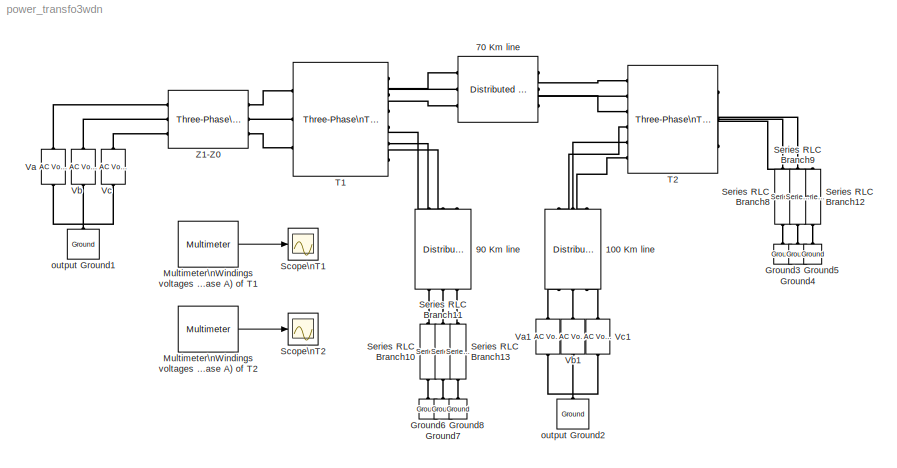
MODEL power_transfo3wdn
KIND model
BLOCK [Reference] 100 Km line  REF=powerlib/Elements/Distributed Parameters Line
  AttributesFormatString = \\n
  Capacitance = [12.02e-9   7.47e-9]
  Frequency = 60
  Inductance = [0.0009536  .0034]
  Length = 100
  Measurements = None
  Phases = 3
  Ports = [0, 0, 0, 0, 0, 3, 3]
  Resistance = [0.045 0.383]
  ShowPortLabels = on
  SourceBlock = powerlib/Elements/Distributed Parameters Line
  SourceType = Distributed Parameters Line
  x1 = [0 0.7635 6.552e+04 -3.356e+05;0.0004716 0.2984 1.238e+05 -3.187e+05;0.0009433 -0.1761 1.782e+05 -2.918e+05;0.001415 -0.645 2.27e+05 -2.556e+05;0.001887 -1.094 2.687e+05 -2.114e+05;0.002358 -1.508 3.018e+05 -1.606e+05]  <repeated x3 — deduplicated; at blocks: 100 Km line, 70 Km line, 90 Km line>
  x2 = [0 1.583 2.165e+04 -3.402e+05;0.0004716 0.789 8.149e+04 -3.31e+05;0.0009433 -0.02989 1.388e+05 -3.114e+05;0.001415 -0.8479 1.916e+05 -2.82e+05;0.001887 -1.639 2.385e+05 -2.436e+05;0.002358 -2.379 2.778e+05 -1.976e+05]  <repeated x3 — deduplicated; at blocks: 100 Km line, 70 Km line, 90 Km line>
  x3 = [0 0.02395 -235.2 649.9;0.0004716 0.02363 -346.5 598;0.0009433 0.02255 -446.8 527.3;0.001415 0.02077 -533 440;0.001887 0.01833 -602.4 338.8;0.002358 0.01531 -652.8 226.9]
  x4 = [0 -0.01995 443.3 -3029;0.0004716 -0.02141 972 -2902;0.0009433 -0.02221 1470 -2685;0.001415 -0.0223 1922 -2382;0.001887 -0.02169 2313 -2005;0.002358 -0.02039 2631 -1564]
  x5 = 0.002358
BLOCK [Reference] 70 Km line  REF=powerlib/Elements/Distributed Parameters Line
  AttributesFormatString = \\n
  Capacitance = [12.02e-9   7.47e-9]
  Frequency = 60
  Inductance = [0.0009536  .0034]
  Length = 70
  Measurements = None
  Phases = 3
  Ports = [0, 0, 0, 0, 0, 3, 3]
  Resistance = [0.045 0.383]
  ShowPortLabels = on
  SourceBlock = powerlib/Elements/Distributed Parameters Line
  SourceType = Distributed Parameters Line
  x3 = [0 0.02395 -235.2 649.9;0.0004716 0.02363 -346.5 598;0.0009433 0.02255 -446.8 527.3;0.001415 0.02077 -533 440;0.001887 0.01833 -602.4 338.8;0.002358 0.01531 -652.8 226.9]
  x4 = [0 -0.01995 443.3 -3029;0.0004716 -0.02141 972 -2902;0.0009433 -0.02221 1470 -2685;0.001415 -0.0223 1922 -2382;0.001887 -0.02169 2313 -2005;0.002358 -0.02039 2631 -1564]
  x5 = 0.002358
BLOCK [Reference] 90 Km line  REF=powerlib/Elements/Distributed Parameters Line
  AttributesFormatString = \\n
  Capacitance = [12.02e-9   7.47e-9]
  Frequency = 60
  Inductance = [0.0009536  .0034]
  Length = 90
  Measurements = None
  Phases = 3
  Ports = [0, 0, 0, 0, 0, 3, 3]
  Resistance = [0.045 0.383]
  ShowPortLabels = on
  SourceBlock = powerlib/Elements/Distributed Parameters Line
  SourceType = Distributed Parameters Line
  x3 = [0 0.02395 -235.2 649.9;0.0004716 0.02363 -346.5 598;0.0009433 0.02255 -446.8 527.3;0.001415 0.02077 -533 440;0.001887 0.01833 -602.4 338.8;0.002358 0.01531 -652.8 226.9]
  x4 = [0 -0.01995 443.3 -3029;0.0004716 -0.02141 972 -2902;0.0009433 -0.02221 1470 -2685;0.001415 -0.0223 1922 -2382;0.001887 -0.02169 2313 -2005;0.002358 -0.02039 2631 -1564]
  x5 = 0.002358
BLOCK [Reference] Ground3  REF=powerlib/Elements/Ground
  AttributesFormatString = \\n
  LConnTagsString = a
  LeftPortType = p1
  PhysicalDomain = powersysdomain
  Ports = [0, 0, 0, 0, 0, 1]
  RightPortType = p1
  SourceBlock = powerlib/Elements/Ground
  SourceType = Ground
  SubClassName = unknown
BLOCK [Reference] Ground4  REF=powerlib/Elements/Ground
  AttributesFormatString = \\n
  LConnTagsString = a
  LeftPortType = p1
  PhysicalDomain = powersysdomain
  Ports = [0, 0, 0, 0, 0, 1]
  RightPortType = p1
  SourceBlock = powerlib/Elements/Ground
  SourceType = Ground
  SubClassName = unknown
BLOCK [Reference] Ground5  REF=powerlib/Elements/Ground
  AttributesFormatString = \\n
  LConnTagsString = a
  LeftPortType = p1
  PhysicalDomain = powersysdomain
  Ports = [0, 0, 0, 0, 0, 1]
  RightPortType = p1
  SourceBlock = powerlib/Elements/Ground
  SourceType = Ground
  SubClassName = unknown
BLOCK [Reference] Ground6  REF=powerlib/Elements/Ground
  AttributesFormatString = \\n
  LConnTagsString = a
  LeftPortType = p1
  PhysicalDomain = powersysdomain
  Ports = [0, 0, 0, 0, 0, 1]
  RightPortType = p1
  SourceBlock = powerlib/Elements/Ground
  SourceType = Ground
  SubClassName = unknown
BLOCK [Reference] Ground7  REF=powerlib/Elements/Ground
  AttributesFormatString = \\n
  LConnTagsString = a
  LeftPortType = p1
  PhysicalDomain = powersysdomain
  Ports = [0, 0, 0, 0, 0, 1]
  RightPortType = p1
  SourceBlock = powerlib/Elements/Ground
  SourceType = Ground
  SubClassName = unknown
BLOCK [Reference] Ground8  REF=powerlib/Elements/Ground
  AttributesFormatString = \\n
  LConnTagsString = a
  LeftPortType = p1
  PhysicalDomain = powersysdomain
  Ports = [0, 0, 0, 0, 0, 1]
  RightPortType = p1
  SourceBlock = powerlib/Elements/Ground
  SourceType = Ground
  SubClassName = unknown
BLOCK [Reference] Multimeter\nWindings voltages (phase A) of T1  REF=powerlib/Measurements/Multimeter
  AttributesFormatString = \\n
  AxesSetting = [0,0.1,-100,100]
  Display = 0
  Gain = [1 1 1]
  L = 18
  OutputType = Magnitude
  PSBOutputType = 1
  PSBequivalent = 0
  PhasorSimulation = off
  Ports = [0, 1]
  SavedBlockNames = {}
  ShowPortLabels = on
  SourceBlock = powerlib/Measurements/Multimeter
  SourceType = MultimeterPSB
  Tag = PoWeRsYsTeMmEaSuReMeNt
  sel = [1 4 7]
  yselected = {'Uag_w1: T1','Uag_w2: T1','Uab_w3: T1'};
BLOCK [Reference] Multimeter\nWindings voltages (phase A) of T2  REF=powerlib/Measurements/Multimeter
  AttributesFormatString = \\n
  AxesSetting = [0,0.1,-100,100]
  Display = 0
  Gain = [1 1 1]
  L = 18
  OutputType = Magnitude
  PSBOutputType = 1
  PSBequivalent = 0
  PhasorSimulation = off
  Ports = [0, 1]
  SavedBlockNames = {}
  ShowPortLabels = on
  SourceBlock = powerlib/Measurements/Multimeter
  SourceType = MultimeterPSB
  Tag = PoWeRsYsTeMmEaSuReMeNt
  sel = [10 13 16]
  yselected = {'Uan_w1: T2','Uan_w2: T2','Uab_w3: T2'};
BLOCK [Scope] Scope\nT1
  DataFormat = StructureWithTime
  NumInputPorts = 1
  Ports = [1]
  TimeRange = 0.1
  YMax = 400000
  YMin = -400000
BLOCK [Scope] Scope\nT2
  DataFormat = StructureWithTime
  NumInputPorts = 1
  Ports = [1]
  TimeRange = 0.1
  YMax = 1e+006
  YMin = -1e+006
BLOCK [Reference] Series RLC Branch10  REF=powerlib/Elements/Series RLC Branch
  AttributesFormatString = \\n
  Capacitance = inf
  Inductance = 6.03
  LConnTagsString = __new0
  LeftPortType = p1
  Measurements = None
  PhysicalDomain = powersysdomain
  Ports = [0, 0, 0, 0, 0, 1, 1]
  RConnTagsString = __new0
  Resistance = 5.7
  RightPortType = p1
  SourceBlock = powerlib/Elements/Series RLC Branch
  SourceType = Series RLC Branch
  SubClassName = unknown
BLOCK [Reference] Series RLC Branch11  REF=powerlib/Elements/Series RLC Branch
  AttributesFormatString = \\n
  Capacitance = inf
  Inductance = 6.03
  LConnTagsString = __new0
  LeftPortType = p1
  Measurements = None
  PhysicalDomain = powersysdomain
  Ports = [0, 0, 0, 0, 0, 1, 1]
  RConnTagsString = __new0
  Resistance = 5.7
  RightPortType = p1
  SourceBlock = powerlib/Elements/Series RLC Branch
  SourceType = Series RLC Branch
  SubClassName = unknown
BLOCK [Reference] Series RLC Branch12  REF=powerlib/Elements/Series RLC Branch
  AttributesFormatString = \\n
  Capacitance = inf
  Inductance = 6.03
  LConnTagsString = __new0
  LeftPortType = p1
  Measurements = None
  PhysicalDomain = powersysdomain
  Ports = [0, 0, 0, 0, 0, 1, 1]
  RConnTagsString = __new0
  Resistance = 5.7
  RightPortType = p1
  SourceBlock = powerlib/Elements/Series RLC Branch
  SourceType = Series RLC Branch
  SubClassName = unknown
BLOCK [Reference] Series RLC Branch13  REF=powerlib/Elements/Series RLC Branch
  AttributesFormatString = \\n
  Capacitance = inf
  Inductance = 6.03
  LConnTagsString = __new0
  LeftPortType = p1
  Measurements = None
  PhysicalDomain = powersysdomain
  Ports = [0, 0, 0, 0, 0, 1, 1]
  RConnTagsString = __new0
  Resistance = 5.7
  RightPortType = p1
  SourceBlock = powerlib/Elements/Series RLC Branch
  SourceType = Series RLC Branch
  SubClassName = unknown
BLOCK [Reference] Series RLC Branch8  REF=powerlib/Elements/Series RLC Branch
  AttributesFormatString = \\n
  Capacitance = inf
  Inductance = 6.03
  LConnTagsString = __new0
  LeftPortType = p1
  Measurements = None
  PhysicalDomain = powersysdomain
  Ports = [0, 0, 0, 0, 0, 1, 1]
  RConnTagsString = __new0
  Resistance = 5.7
  RightPortType = p1
  SourceBlock = powerlib/Elements/Series RLC Branch
  SourceType = Series RLC Branch
  SubClassName = unknown
BLOCK [Reference] Series RLC Branch9  REF=powerlib/Elements/Series RLC Branch
  AttributesFormatString = \\n
  Capacitance = inf
  Inductance = 6.03
  LConnTagsString = __new0
  LeftPortType = p1
  Measurements = None
  PhysicalDomain = powersysdomain
  Ports = [0, 0, 0, 0, 0, 1, 1]
  RConnTagsString = __new0
  Resistance = 5.7
  RightPortType = p1
  SourceBlock = powerlib/Elements/Series RLC Branch
  SourceType = Series RLC Branch
  SubClassName = unknown
BLOCK [Reference] T1  REF=powerlib/Elements/Three-Phase\nTransformer\n(Three Windings)
  AttributesFormatString = \\n
  DataFile = 'hysteresis'
  Hysteresis = off
  InitialFluxes = [0.8 -0.8 0.7]
  Lm = 500
  Measurements = Winding voltages
  NominalPower = [ 250e6 , 60 ]
  Ports = [0, 0, 0, 0, 0, 3, 6]
  Rm = 500
  Saturation = [ 0,0  ;  0.005,1.2  ;  1.0,1.4]
  SetInitialFlux = off
  SetSaturation = off
  ShowPortLabels = on
  SourceBlock = powerlib/Elements/Three-Phase\nTransformer\n(Three Windings)
  SourceType = Three-Phase Transformer (Three Windings)
  TransfoNumber = 0
  Winding1 = [ 735e3 , 0.002 , 0.08 ]
  Winding1Connection = Yg
  Winding2 = [ 315e3 , 0.002 , 0.08 ]
  Winding2Connection = Yg
  Winding3 = [ 315e3 , 0.002 , 0.08 ]
  Winding3Connection = Delta (D1)
BLOCK [Reference] T2  REF=powerlib/Elements/Three-Phase\nTransformer\n(Three Windings)
  AttributesFormatString = \\n
  DataFile = 'hysteresis'
  Hysteresis = off
  InitialFluxes = [0.8 -0.8 0.7]
  Lm = 500
  Measurements = Winding voltages
  NominalPower = [ 250e6 , 60 ]
  Ports = [0, 0, 0, 0, 0, 3, 6]
  Rm = 500
  Saturation = [ 0,0  ;  0.005,1.2  ;  1.0,1.4]
  SetInitialFlux = off
  SetSaturation = off
  ShowPortLabels = on
  SourceBlock = powerlib/Elements/Three-Phase\nTransformer\n(Three Windings)
  SourceType = Three-Phase Transformer (Three Windings)
  TransfoNumber = 0
  Winding1 = [ 735e3 , 0.002 , 0.08 ]
  Winding1Connection = Y
  Winding2 = [ 315e3 , 0.002 , 0.08 ]
  Winding2Connection = Y
  Winding3 = [ 315e3 , 0.002 , 0.08 ]
  Winding3Connection = Delta (D1)
BLOCK [Reference] Va  REF=powerlib/Electrical\nSources/AC Voltage Source
  Amplitude = 315e3
  AttributesFormatString = \\n
  Description = source block
  Frequency = 60
  Measurements = None
  Phase = -65.4
  Ports = [0, 0, 0, 0, 0, 1, 1]
  SampleTime = 0
  ShowPortLabels = on
  SourceBlock = powerlib/Electrical\nSources/AC Voltage Source
  SourceType = AC Voltage Source
BLOCK [Reference] Va1  REF=powerlib/Electrical\nSources/AC Voltage Source
  Amplitude = 479690
  AttributesFormatString = \\n
  Description = source block
  Frequency = 60
  Measurements = None
  Phase = 0
  Ports = [0, 0, 0, 0, 0, 1, 1]
  SampleTime = 0
  ShowPortLabels = on
  SourceBlock = powerlib/Electrical\nSources/AC Voltage Source
  SourceType = AC Voltage Source
BLOCK [Reference] Vb  REF=powerlib/Electrical\nSources/AC Voltage Source
  Amplitude = 315e3
  AttributesFormatString = \\n
  Description = source block
  Frequency = 60
  Measurements = None
  Phase = -65.4-120
  Ports = [0, 0, 0, 0, 0, 1, 1]
  SampleTime = 0
  ShowPortLabels = on
  SourceBlock = powerlib/Electrical\nSources/AC Voltage Source
  SourceType = AC Voltage Source
BLOCK [Reference] Vb1  REF=powerlib/Electrical\nSources/AC Voltage Source
  Amplitude = 470000
  AttributesFormatString = \\n
  Description = source block
  Frequency = 60
  Measurements = None
  Phase = -120
  Ports = [0, 0, 0, 0, 0, 1, 1]
  SampleTime = 0
  ShowPortLabels = on
  SourceBlock = powerlib/Electrical\nSources/AC Voltage Source
  SourceType = AC Voltage Source
BLOCK [Reference] Vc  REF=powerlib/Electrical\nSources/AC Voltage Source
  Amplitude = 479690
  AttributesFormatString = \\n
  Description = source block
  Frequency = 60
  Measurements = None
  Phase = -65.4+120
  Ports = [0, 0, 0, 0, 0, 1, 1]
  SampleTime = 0
  ShowPortLabels = on
  SourceBlock = powerlib/Electrical\nSources/AC Voltage Source
  SourceType = AC Voltage Source
BLOCK [Reference] Vc1  REF=powerlib/Electrical\nSources/AC Voltage Source
  Amplitude = 470000
  AttributesFormatString = \\n
  Description = source block
  Frequency = 60
  Measurements = None
  Phase = +120
  Ports = [0, 0, 0, 0, 0, 1, 1]
  SampleTime = 0
  ShowPortLabels = on
  SourceBlock = powerlib/Electrical\nSources/AC Voltage Source
  SourceType = AC Voltage Source
BLOCK [Reference] Z1-Z0  REF=powerlib/Elements/Three-Phase\nMutual Inductance\nZ1-Z0
  AttributesFormatString = \\n
  LConnTagsString = a|b|c
  LeftPortType = p1
  PhysicalDomain = powersysdomain
  Ports = [0, 0, 0, 0, 0, 3, 3]
  PositiveSequence = [ 2  50e-3]
  RConnTagsString = A|B|C
  RightPortType = p1
  SourceBlock = powerlib/Elements/Three-Phase\nMutual Inductance\nZ1-Z0
  SourceType = Three-Phase Mutual Inductance Z1-Z0
  SubClassName = unknown
  ZeroSequence = [4  100e-3]
BLOCK [Reference] output Ground1  REF=powerlib/Elements/Ground
  AttributesFormatString = \\n
  LConnTagsString = a
  LeftPortType = p1
  PhysicalDomain = powersysdomain
  Ports = [0, 0, 0, 0, 0, 1]
  RightPortType = p1
  SourceBlock = powerlib/Elements/Ground
  SourceType = Ground
  SubClassName = unknown
BLOCK [Reference] output Ground2  REF=powerlib/Elements/Ground
  AttributesFormatString = \\n
  LConnTagsString = a
  LeftPortType = p1
  PhysicalDomain = powersysdomain
  Ports = [0, 0, 0, 0, 0, 1]
  RightPortType = p1
  SourceBlock = powerlib/Elements/Ground
  SourceType = Ground
  SubClassName = unknown
LINE Multimeter\nWindings voltages (phase A) of T1:1 -> Scope\nT1:1
LINE Multimeter\nWindings voltages (phase A) of T2:1 -> Scope\nT2:1
PLINE 100 Km line:LConn1 -- Va1:RConn1
PLINE 100 Km line:LConn2 -- Vb1:RConn1
PLINE 100 Km line:LConn3 -- Vc1:RConn1
PLINE 100 Km line:RConn1 -- T2:RConn4
PLINE 100 Km line:RConn2 -- T2:RConn5
PLINE 100 Km line:RConn3 -- T2:RConn6
PLINE 70 Km line:LConn1 -- T1:RConn1
PLINE 70 Km line:LConn2 -- T1:RConn2
PLINE 70 Km line:LConn3 -- T1:RConn3
PLINE 70 Km line:RConn1 -- T2:RConn1
PLINE 70 Km line:RConn2 -- T2:RConn2
PLINE 70 Km line:RConn3 -- T2:RConn3
PLINE 90 Km line:LConn1 -- T1:RConn4
PLINE 90 Km line:LConn2 -- T1:RConn5
PLINE 90 Km line:LConn3 -- T1:RConn6
PLINE 90 Km line:RConn1 -- Series RLC Branch10:LConn1
PLINE 90 Km line:RConn2 -- Series RLC Branch11:LConn1
PLINE 90 Km line:RConn3 -- Series RLC Branch13:LConn1
PLINE Ground3:LConn1 -- Series RLC Branch8:RConn1
PLINE Ground4:LConn1 -- Series RLC Branch9:RConn1
PLINE Ground5:LConn1 -- Series RLC Branch12:RConn1
PLINE Ground6:LConn1 -- Series RLC Branch10:RConn1
PLINE Ground7:LConn1 -- Series RLC Branch11:RConn1
PLINE Ground8:LConn1 -- Series RLC Branch13:RConn1
PLINE Series RLC Branch12:LConn1 -- T2:LConn1
PLINE Series RLC Branch8:LConn1 -- T2:LConn3
PLINE Series RLC Branch9:LConn1 -- T2:LConn2
PLINE T1:LConn1 -- Z1-Z0:RConn1
PLINE T1:LConn2 -- Z1-Z0:RConn2
PLINE T1:LConn3 -- Z1-Z0:RConn3
PNET net1: Va1:LConn1 -- Vb1:LConn1 -- Vc1:LConn1 -- output Ground2:LConn1
PNET net2: Va:LConn1 -- Vb:LConn1 -- Vc:LConn1 -- output Ground1:LConn1
PLINE Va:RConn1 -- Z1-Z0:LConn1
PLINE Vb:RConn1 -- Z1-Z0:LConn2
PLINE Vc:RConn1 -- Z1-Z0:LConn3
note: PNET lines group multi-terminal physical nets as a canonical sorted terminal list (undirected conserving connections); 2-terminal nets keep the pairwise PLINE form
